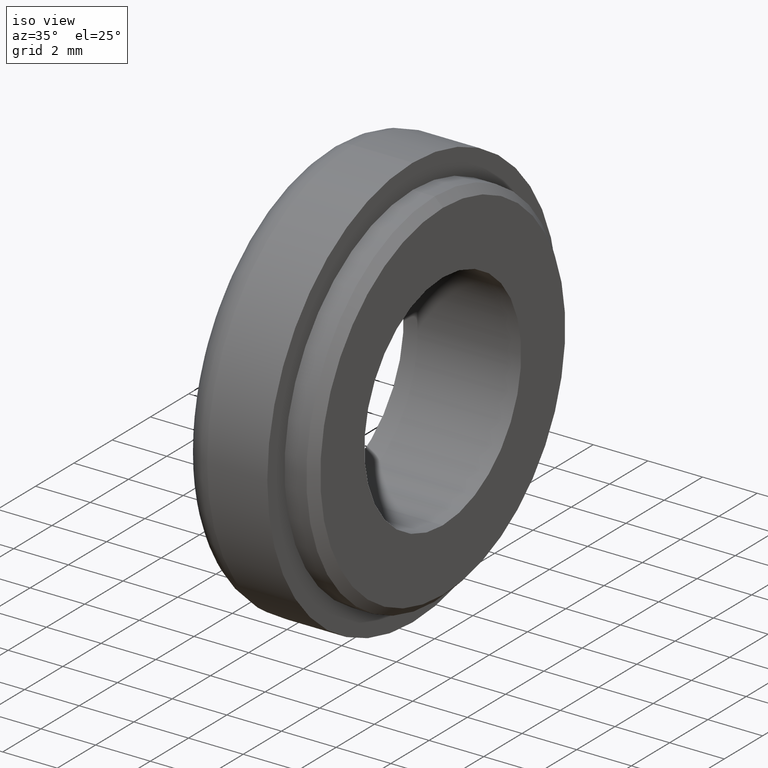
[diagram: clean part render]
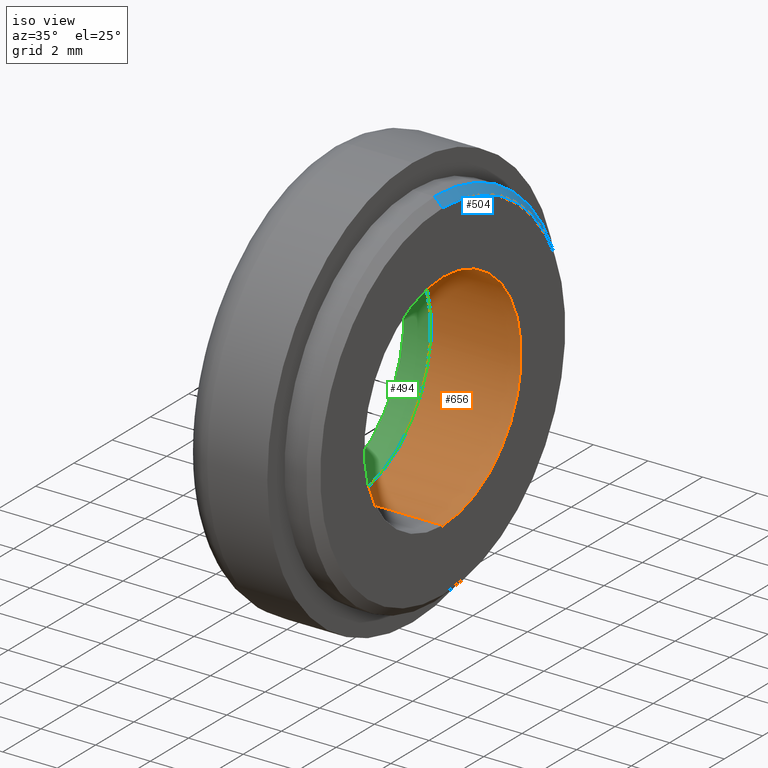
[diagram: same view with three faces highlighted in distinct colors, each labeled with its STEP entity id]
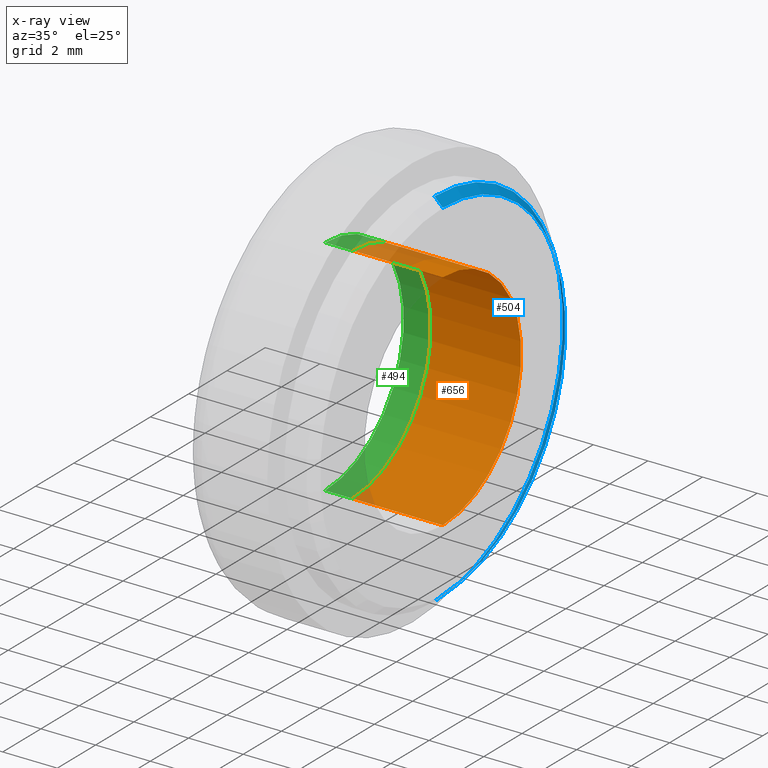
[diagram: x-ray of the same camera — body ghosted, the three highlighted faces saturated]
A machine part, iso view with three faces highlighted in distinct colors.
The next image is the same camera in x-ray (body ghosted, the three faces saturated) — at least one of them is partly hidden behind the body in this view.
Their STEP definitions:

[orange] entity #656 — the highlighted cylindrical surface (partial cylindrical patch) has radius 4.1 mm, axis along (-1, -0, -0).
#4 = VECTOR ( 'NONE', #346, 1000.000000000000000 ) ;
#23 = DIRECTION ( 'NONE',  ( 0.0000000000000000000, 0.0000000000000000000, 1.000000000000000000 ) ) ;
#45 = CARTESIAN_POINT ( 'NONE',  ( -88.98999999999999500, 0.0000000000000000000, 0.0000000000000000000 ) ) ;
#130 = CARTESIAN_POINT ( 'NONE',  ( -88.98999999999999500, 5.021051876504147400E-016, -4.099999999999999600 ) ) ;
#158 = CARTESIAN_POINT ( 'NONE',  ( 0.0000000000000000000, 0.0000000000000000000, 0.0000000000000000000 ) ) ;
#178 = DIRECTION ( 'NONE',  ( -1.000000000000000000, -0.0000000000000000000, -0.0000000000000000000 ) ) ;
#193 = ORIENTED_EDGE ( 'NONE', *, *, #626, .F. ) ;
#208 = DIRECTION ( 'NONE',  ( 0.0000000000000000000, 0.0000000000000000000, 1.000000000000000000 ) ) ;
#222 = ORIENTED_EDGE ( 'NONE', *, *, #547, .T. ) ;
#232 = LINE ( 'NONE', #544, #361 ) ;
#251 = CARTESIAN_POINT ( 'NONE',  ( 3.299999999999997200, 0.0000000000000000000, 0.0000000000000000000 ) ) ;
#281 = EDGE_LOOP ( 'NONE', ( #453, #193, #222, #389 ) ) ;
#326 = LINE ( 'NONE', #130, #4 ) ;
#335 = FACE_OUTER_BOUND ( 'NONE', #281, .T. ) ;
#346 = DIRECTION ( 'NONE',  ( -1.000000000000000000, -0.0000000000000000000, -0.0000000000000000000 ) ) ;
#358 = DIRECTION ( 'NONE',  ( 0.0000000000000000000, 0.0000000000000000000, 1.000000000000000000 ) ) ;
#361 = VECTOR ( 'NONE', #507, 1000.000000000000000 ) ;
#371 = CARTESIAN_POINT ( 'NONE',  ( 0.0000000000000000000, 0.0000000000000000000, 4.099999999999999600 ) ) ;
#375 = VERTEX_POINT ( 'NONE', #458 ) ;
#379 = VERTEX_POINT ( 'NONE', #470 ) ;
#389 = ORIENTED_EDGE ( 'NONE', *, *, #437, .T. ) ;
#423 = CIRCLE ( 'NONE', #690, 4.099999999999999600 ) ;
#437 = EDGE_CURVE ( 'NONE', #712, #379, #423, .T. ) ;
#439 = AXIS2_PLACEMENT_3D ( 'NONE', #251, #501, #358 ) ;
#453 = ORIENTED_EDGE ( 'NONE', *, *, #673, .F. ) ;
#458 = CARTESIAN_POINT ( 'NONE',  ( 3.299999999999997200, 5.021051876504146400E-016, -4.099999999999998800 ) ) ;
#470 = CARTESIAN_POINT ( 'NONE',  ( 0.0000000000000000000, 5.021051876504147400E-016, -4.099999999999999600 ) ) ;
#501 = DIRECTION ( 'NONE',  ( -1.000000000000000000, -0.0000000000000000000, -0.0000000000000000000 ) ) ;
#507 = DIRECTION ( 'NONE',  ( -1.000000000000000000, -0.0000000000000000000, -0.0000000000000000000 ) ) ;
#544 = CARTESIAN_POINT ( 'NONE',  ( -88.98999999999999500, 0.0000000000000000000, 4.099999999999999600 ) ) ;
#547 = EDGE_CURVE ( 'NONE', #632, #712, #232, .T. ) ;
#597 = DIRECTION ( 'NONE',  ( -1.000000000000000000, -0.0000000000000000000, -0.0000000000000000000 ) ) ;
#623 = CYLINDRICAL_SURFACE ( 'NONE', #721, 4.099999999999999600 ) ;
#626 = EDGE_CURVE ( 'NONE', #632, #375, #637, .T. ) ;
#632 = VERTEX_POINT ( 'NONE', #662 ) ;
#637 = CIRCLE ( 'NONE', #439, 4.099999999999998800 ) ;
#656 = ADVANCED_FACE ( 'NONE', ( #335 ), #623, .F. ) ;
#662 = CARTESIAN_POINT ( 'NONE',  ( 3.299999999999997200, 0.0000000000000000000, 4.099999999999998800 ) ) ;
#673 = EDGE_CURVE ( 'NONE', #375, #379, #326, .T. ) ;
#690 = AXIS2_PLACEMENT_3D ( 'NONE', #158, #178, #208 ) ;
#712 = VERTEX_POINT ( 'NONE', #371 ) ;
#721 = AXIS2_PLACEMENT_3D ( 'NONE', #45, #597, #23 ) ;

[blue] entity #504 — the highlighted conical surface has half-angle 45 deg.
#10 = CARTESIAN_POINT ( 'NONE',  ( 3.299999999999997200, 7.837739514543060900E-016, -6.400000000000000400 ) ) ;
#11 = EDGE_LOOP ( 'NONE', ( #73, #503, #509, #719 ) ) ;
#35 = AXIS2_PLACEMENT_3D ( 'NONE', #533, #242, #416 ) ;
#40 = VECTOR ( 'NONE', #611, 1000.000000000000000 ) ;
#73 = ORIENTED_EDGE ( 'NONE', *, *, #473, .T. ) ;
#78 = CIRCLE ( 'NONE', #96, 6.700000000000000200 ) ;
#96 = AXIS2_PLACEMENT_3D ( 'NONE', #488, #305, #602 ) ;
#156 = AXIS2_PLACEMENT_3D ( 'NONE', #520, #651, #578 ) ;
#165 = VECTOR ( 'NONE', #491, 1000.000000000000000 ) ;
#177 = FACE_OUTER_BOUND ( 'NONE', #11, .T. ) ;
#242 = DIRECTION ( 'NONE',  ( -1.000000000000000000, -0.0000000000000000000, -0.0000000000000000000 ) ) ;
#246 = EDGE_CURVE ( 'NONE', #599, #356, #78, .T. ) ;
#304 = CARTESIAN_POINT ( 'NONE',  ( 3.000000000000002700, 8.205133554287266600E-016, -6.700000000000000200 ) ) ;
#305 = DIRECTION ( 'NONE',  ( -1.000000000000000000, -0.0000000000000000000, -0.0000000000000000000 ) ) ;
#356 = VERTEX_POINT ( 'NONE', #304 ) ;
#367 = CARTESIAN_POINT ( 'NONE',  ( 3.299999999999997200, 8.021436534415164200E-016, -6.400000000000000400 ) ) ;
#377 = LINE ( 'NONE', #465, #40 ) ;
#416 = DIRECTION ( 'NONE',  ( 0.0000000000000000000, 0.0000000000000000000, 1.000000000000000000 ) ) ;
#442 = VERTEX_POINT ( 'NONE', #367 ) ;
#465 = CARTESIAN_POINT ( 'NONE',  ( 3.299999999999997200, 0.0000000000000000000, 6.400000000000000400 ) ) ;
#473 = EDGE_CURVE ( 'NONE', #513, #442, #559, .T. ) ;
#488 = CARTESIAN_POINT ( 'NONE',  ( 3.000000000000002700, 0.0000000000000000000, 0.0000000000000000000 ) ) ;
#491 = DIRECTION ( 'NONE',  ( -0.7071067811865414700, 8.659560562355008000E-017, -0.7071067811865536800 ) ) ;
#503 = ORIENTED_EDGE ( 'NONE', *, *, #532, .T. ) ;
#504 = ADVANCED_FACE ( 'NONE', ( #177 ), #583, .T. ) ;
#509 = ORIENTED_EDGE ( 'NONE', *, *, #246, .F. ) ;
#513 = VERTEX_POINT ( 'NONE', #596 ) ;
#520 = CARTESIAN_POINT ( 'NONE',  ( 3.299999999999997200, 0.0000000000000000000, 0.0000000000000000000 ) ) ;
#532 = EDGE_CURVE ( 'NONE', #442, #356, #661, .T. ) ;
#533 = CARTESIAN_POINT ( 'NONE',  ( 3.299999999999997200, 0.0000000000000000000, 0.0000000000000000000 ) ) ;
#559 = CIRCLE ( 'NONE', #35, 6.400000000000000400 ) ;
#578 = DIRECTION ( 'NONE',  ( 0.0000000000000000000, 0.0000000000000000000, 1.000000000000000000 ) ) ;
#583 = CONICAL_SURFACE ( 'NONE', #156, 6.400000000000000400, 0.7853981633974569400 ) ;
#596 = CARTESIAN_POINT ( 'NONE',  ( 3.299999999999997200, 0.0000000000000000000, 6.400000000000000400 ) ) ;
#599 = VERTEX_POINT ( 'NONE', #678 ) ;
#602 = DIRECTION ( 'NONE',  ( 0.0000000000000000000, 0.0000000000000000000, 1.000000000000000000 ) ) ;
#611 = DIRECTION ( 'NONE',  ( -0.7071067811865414700, 0.0000000000000000000, 0.7071067811865536800 ) ) ;
#639 = EDGE_CURVE ( 'NONE', #513, #599, #377, .T. ) ;
#651 = DIRECTION ( 'NONE',  ( -1.000000000000000000, -0.0000000000000000000, -0.0000000000000000000 ) ) ;
#661 = LINE ( 'NONE', #10, #165 ) ;
#678 = CARTESIAN_POINT ( 'NONE',  ( 3.000000000000002700, 0.0000000000000000000, 6.700000000000000200 ) ) ;
#719 = ORIENTED_EDGE ( 'NONE', *, *, #639, .F. ) ;

[green] entity #494 — the highlighted cylindrical surface (partial cylindrical patch) has radius 4.1 mm, axis along (-1, 0, 0).
#86 = DIRECTION ( 'NONE',  ( -1.000000000000000000, 0.0000000000000000000, 0.0000000000000000000 ) ) ;
#92 = DIRECTION ( 'NONE',  ( 1.000000000000000000, 0.0000000000000000000, 0.0000000000000000000 ) ) ;
#112 = CARTESIAN_POINT ( 'NONE',  ( 0.0000000000000000000, 0.0000000000000000000, 4.099999999999999600 ) ) ;
#118 = VECTOR ( 'NONE', #506, 1000.000000000000000 ) ;
#129 = CARTESIAN_POINT ( 'NONE',  ( 0.0000000000000000000, 5.021051876504147400E-016, -4.099999999999999600 ) ) ;
#133 = DIRECTION ( 'NONE',  ( 0.0000000000000000000, 0.0000000000000000000, -1.000000000000000000 ) ) ;
#135 = VERTEX_POINT ( 'NONE', #112 ) ;
#141 = EDGE_CURVE ( 'NONE', #685, #135, #279, .T. ) ;
#152 = CARTESIAN_POINT ( 'NONE',  ( 3.200000000000000200, 0.0000000000000000000, 0.0000000000000000000 ) ) ;
#170 = FACE_OUTER_BOUND ( 'NONE', #288, .T. ) ;
#172 = VECTOR ( 'NONE', #298, 1000.000000000000000 ) ;
#198 = AXIS2_PLACEMENT_3D ( 'NONE', #152, #86, #403 ) ;
#202 = LINE ( 'NONE', #313, #118 ) ;
#203 = CIRCLE ( 'NONE', #657, 4.099999999999999600 ) ;
#218 = EDGE_CURVE ( 'NONE', #229, #135, #382, .T. ) ;
#229 = VERTEX_POINT ( 'NONE', #129 ) ;
#279 = LINE ( 'NONE', #647, #172 ) ;
#288 = EDGE_LOOP ( 'NONE', ( #527, #522, #710, #640 ) ) ;
#298 = DIRECTION ( 'NONE',  ( -1.000000000000000000, 0.0000000000000000000, 0.0000000000000000000 ) ) ;
#313 = CARTESIAN_POINT ( 'NONE',  ( 3.200000000000000200, 5.021051876504147400E-016, -4.099999999999999600 ) ) ;
#343 = CARTESIAN_POINT ( 'NONE',  ( 0.0000000000000000000, 0.0000000000000000000, 0.0000000000000000000 ) ) ;
#382 = CIRCLE ( 'NONE', #671, 4.099999999999999600 ) ;
#403 = DIRECTION ( 'NONE',  ( 0.0000000000000000000, 0.0000000000000000000, 1.000000000000000000 ) ) ;
#418 = EDGE_CURVE ( 'NONE', #685, #536, #203, .T. ) ;
#450 = CARTESIAN_POINT ( 'NONE',  ( 1.000000000000000000, 5.021051876504147400E-016, -4.099999999999999600 ) ) ;
#483 = CARTESIAN_POINT ( 'NONE',  ( 1.000000000000000000, 0.0000000000000000000, 4.099999999999999600 ) ) ;
#494 = ADVANCED_FACE ( 'NONE', ( #170 ), #590, .F. ) ;
#506 = DIRECTION ( 'NONE',  ( -1.000000000000000000, 0.0000000000000000000, 0.0000000000000000000 ) ) ;
#522 = ORIENTED_EDGE ( 'NONE', *, *, #418, .F. ) ;
#527 = ORIENTED_EDGE ( 'NONE', *, *, #695, .F. ) ;
#536 = VERTEX_POINT ( 'NONE', #450 ) ;
#554 = DIRECTION ( 'NONE',  ( -1.000000000000000000, -0.0000000000000000000, -0.0000000000000000000 ) ) ;
#590 = CYLINDRICAL_SURFACE ( 'NONE', #198, 4.099999999999999600 ) ;
#640 = ORIENTED_EDGE ( 'NONE', *, *, #218, .F. ) ;
#643 = DIRECTION ( 'NONE',  ( 0.0000000000000000000, 0.0000000000000000000, -1.000000000000000000 ) ) ;
#647 = CARTESIAN_POINT ( 'NONE',  ( 3.200000000000000200, 0.0000000000000000000, 4.099999999999999600 ) ) ;
#657 = AXIS2_PLACEMENT_3D ( 'NONE', #697, #554, #133 ) ;
#671 = AXIS2_PLACEMENT_3D ( 'NONE', #343, #92, #643 ) ;
#685 = VERTEX_POINT ( 'NONE', #483 ) ;
#695 = EDGE_CURVE ( 'NONE', #536, #229, #202, .T. ) ;
#697 = CARTESIAN_POINT ( 'NONE',  ( 1.000000000000000000, 0.0000000000000000000, 0.0000000000000000000 ) ) ;
#710 = ORIENTED_EDGE ( 'NONE', *, *, #141, .T. ) ;